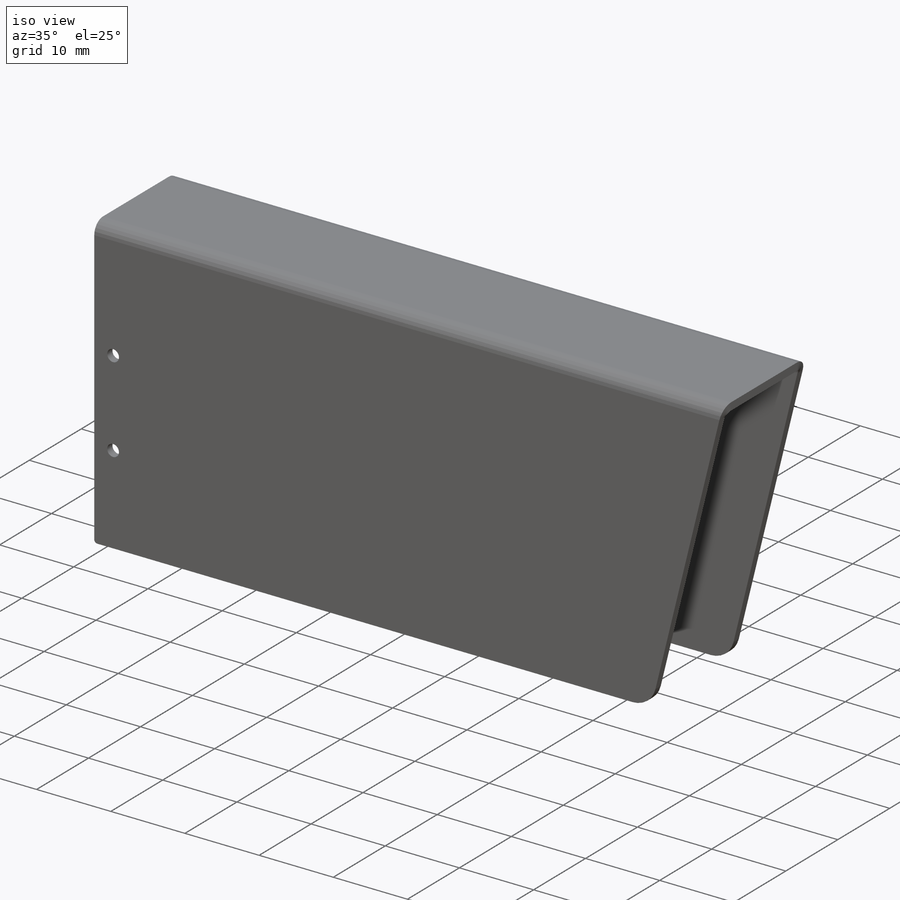
[diagram: iso view]
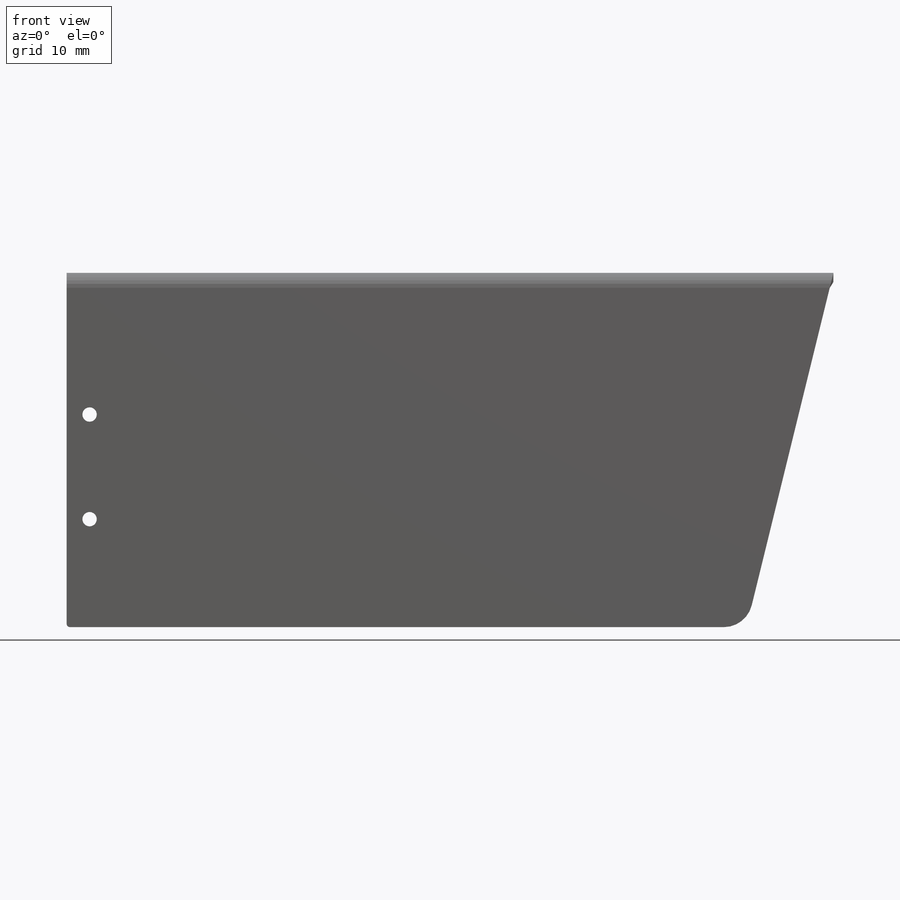
[diagram: front view]
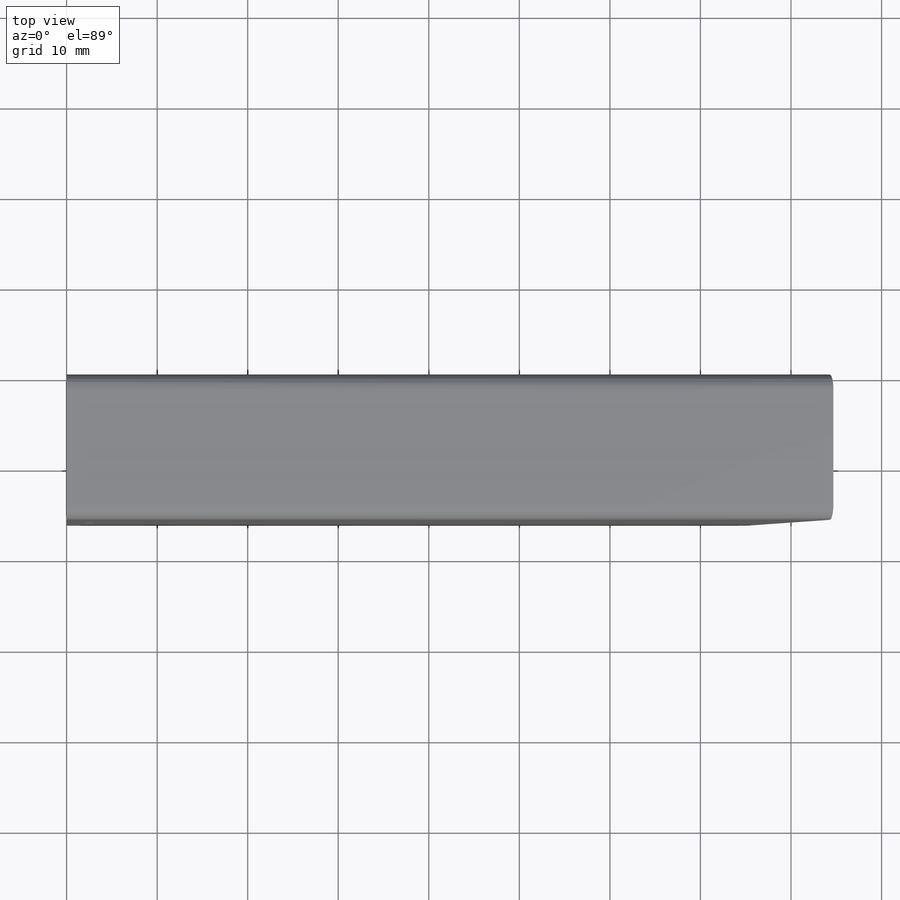
[diagram: top view]
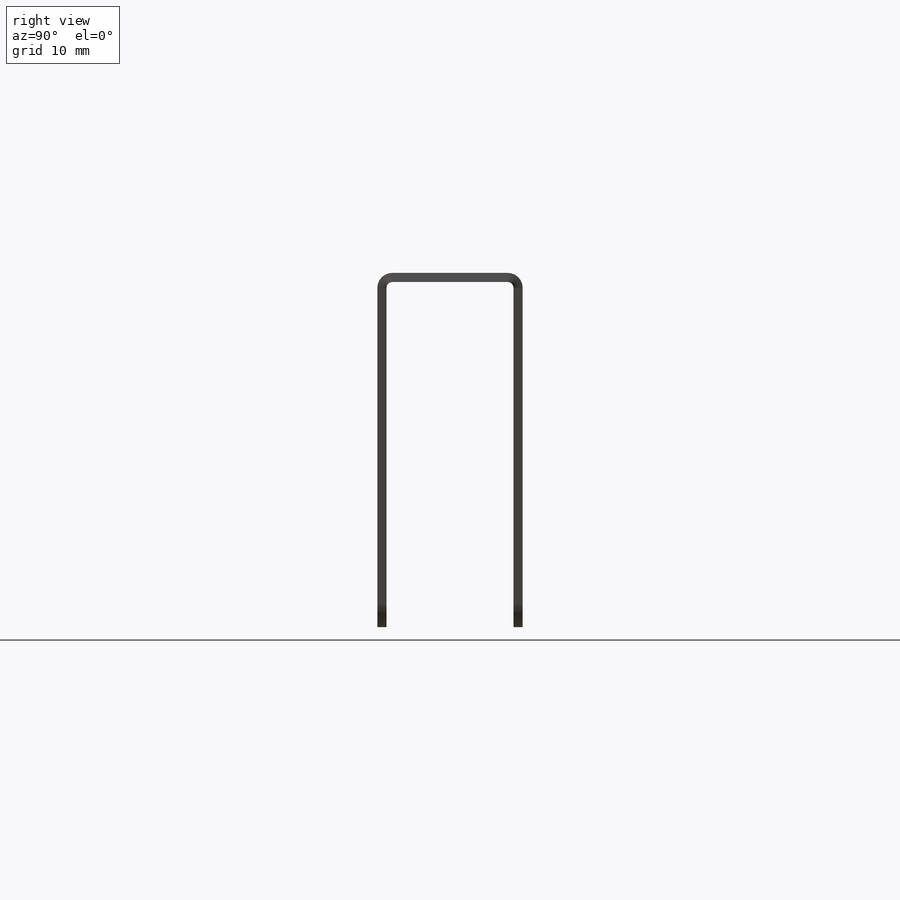
[diagram: right view]
SOLIDWORKS PART (.sldprt)
format: sldprt  version: not decoded by parser v0  size: 226,816 bytes
history: native  units: mm
features: sketch x3, fillet x2, material x1, extrude x1, cut_extrude x1, sheet_metal_op x1 + 2 further entries (+16 scaffold rows collapsed)
feature tree (27):
  scaffold x16  (default folders/planes/origin — collapsed)
  material  "6061-T6 (SS)"
  sketch  "Sketch1"  dims[D1=84.6836mm D2=39.1287mm D3=75.0697mm]
  extrude  "Extrude1"  Depth=16.0528mm
  sketch  "Sketch4"  dims[D1=1.5875mm D2=2.54mm D3=11.9253mm]
  cut_extrude  "Extrude2"  [1 undecoded]
  fillet  "Fillet1"  Radius=3.175mm
  sheet_metal_op  "Sheet-Metal1"  Thickness=1.016mm SharpBend2=0
  fillet  "Fillet3"  Radius=0.396875mm
  "Flat-Pattern1"
  sketch  "Bend-Lines1"
  "Flatten-<SharpBend2>1"
decode coverage: 6 of 8 modeling features carry decoded parameters; 2 rows unclassified (native names shown)
note: 1 parameter value undecoded
note: suppression state not decoded; provenance and decode notes live in map.json
